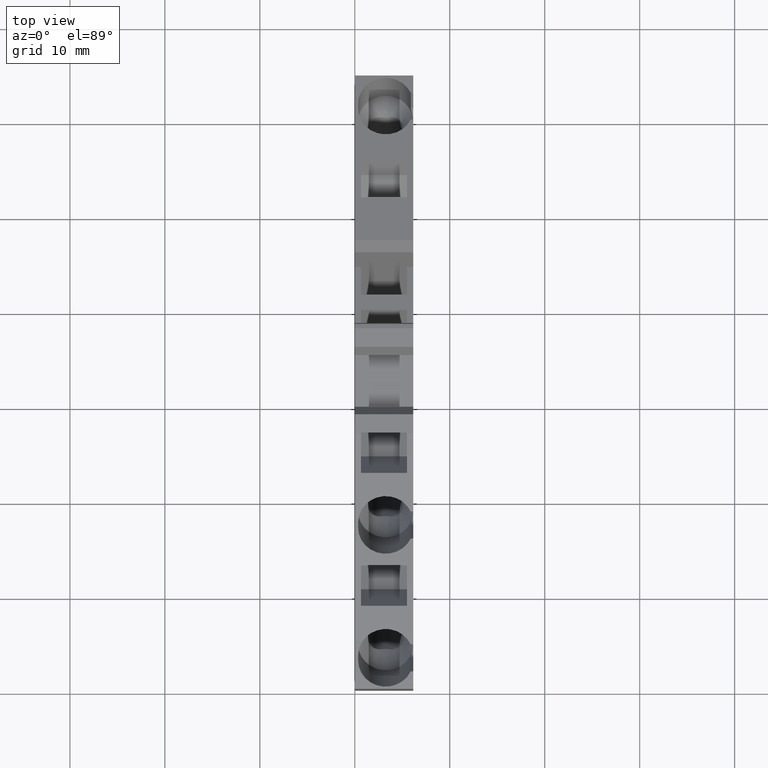
[diagram: clean part render]
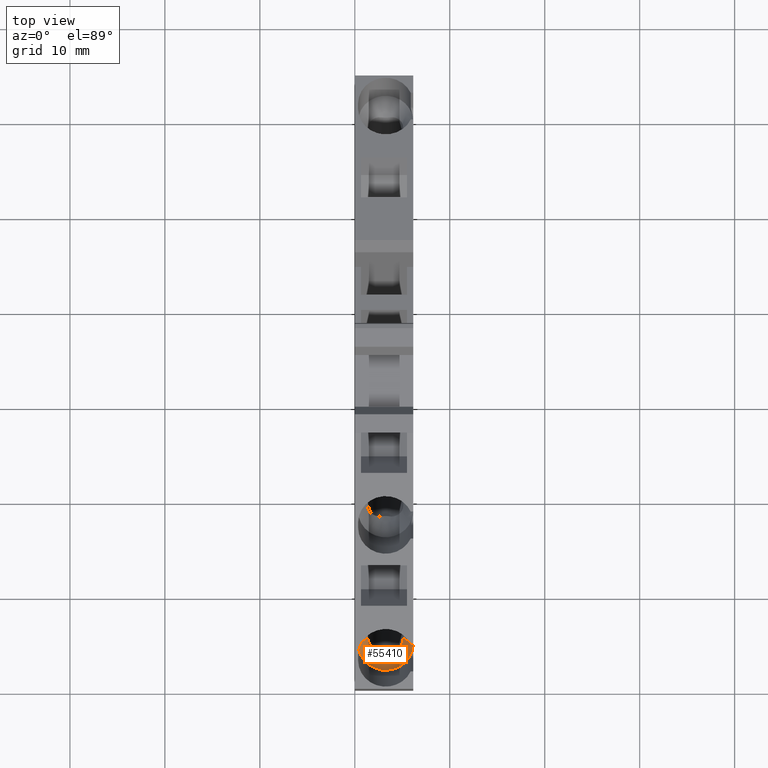
[diagram: same view with one face highlighted and labeled with its STEP entity id]
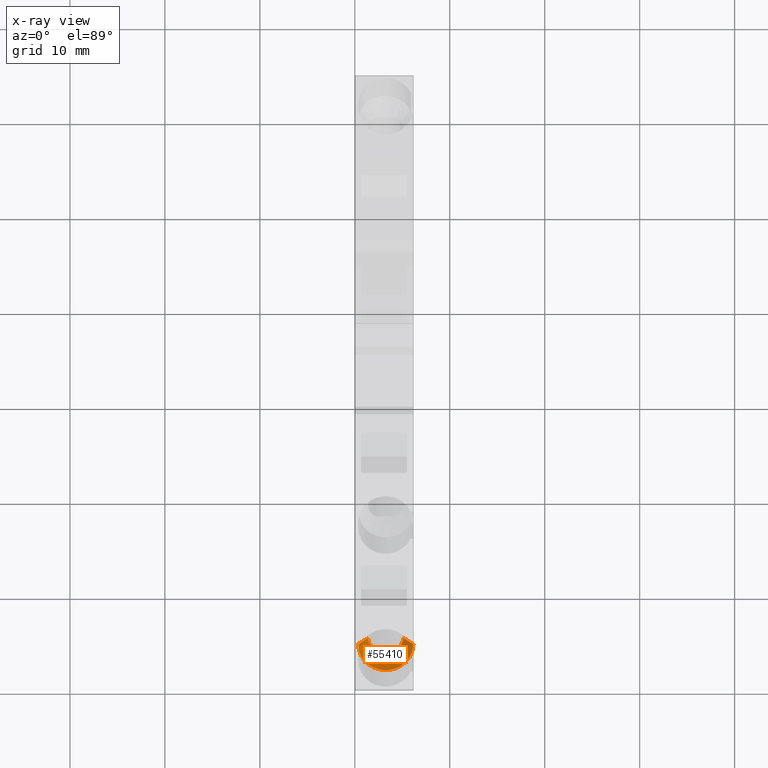
[diagram: x-ray of the same camera — body ghosted, the highlighted face saturated]
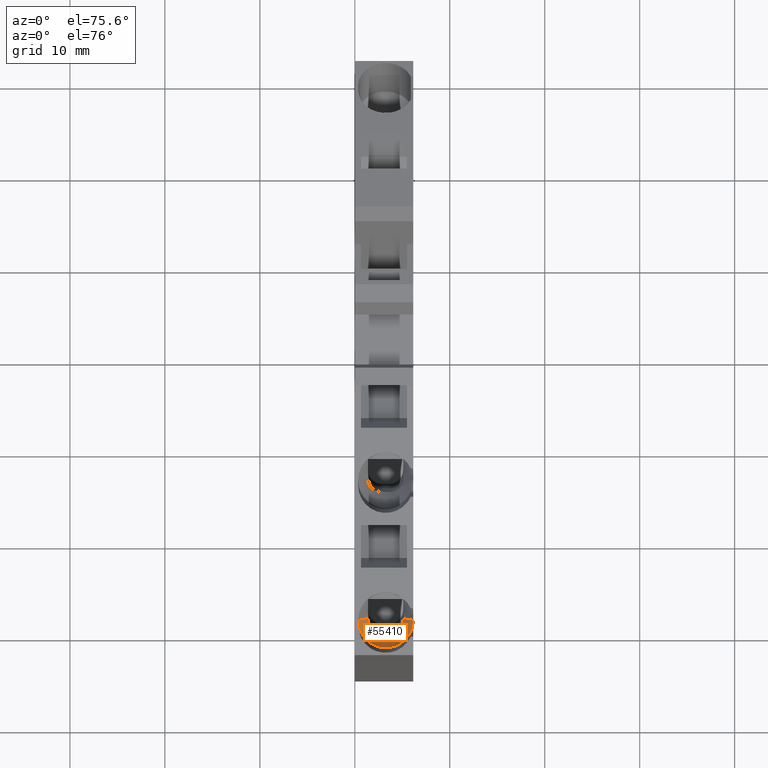
[diagram: same view with one face highlighted and labeled with its STEP entity id]
A machine part, top view. The second image highlights one B-rep face of the part: STEP entity #55410.
The next image is the same camera in x-ray: the body ghosted, the highlighted face saturated — about 0% of this face is hidden behind the body in this view.
A second angle (auxiliary view) of the same face is appended — the face is thin or edge-on in the first view.
In plain terms, the highlighted conical surface has half-angle 28.301 deg.
Its self-contained STEP definition (entity closure, byte-faithful):
#5430=CARTESIAN_POINT('',(-102.118063169516,37.6700971062937,
0.949999999999994));
#5440=VERTEX_POINT('',#5430);
#10970=CARTESIAN_POINT('',(-102.118063169515,37.6700971062937,
-4.85000000000001));
#10980=VERTEX_POINT('',#10970);
#20790=CARTESIAN_POINT('',(-101.45112389003,35.8376964957612,-3.8));
#20800=VERTEX_POINT('',#20790);
#44500=CARTESIAN_POINT('',(-102.118063169515,37.6700971062937,
-1.95000000000001));
#44510=DIRECTION('',(-0.342020143325662,0.939692620785911,
-3.52120158727582E-15));
#44520=DIRECTION('',(-0.939692620785911,-0.342020143325662,0.));
#44530=AXIS2_PLACEMENT_3D('',#44500,#44510,#44520);
#44540=CIRCLE('',#44530,2.9);
#44550=CARTESIAN_POINT('',(-102.306001693665,37.6016930776313,
0.943095228297956));
#44560=VERTEX_POINT('',#44550);
#44570=EDGE_CURVE('',#10980,#44560,#44540,.T.);
#48500=CARTESIAN_POINT('',(-102.118063169515,37.6700971062937,
-1.95000000000001));
#48510=DIRECTION('',(0.342020143325655,-0.939692620785913,
3.57099154978097E-15));
#48520=DIRECTION('',(1.15466216469529E-15,-3.37990717439375E-15,-1.));
#48530=AXIS2_PLACEMENT_3D('',#48500,#48510,#48520);
#48540=CIRCLE('',#48530,2.9);
#48550=EDGE_CURVE('',#5440,#44560,#48540,.T.);
#48670=CARTESIAN_POINT('',(-102.351950996681,34.073182249879,-2.35));
#48680=DIRECTION('',(0.939692620785908,0.342020143325669,
-7.09688205487581E-17));
#48690=DIRECTION('',(1.17560485838368E-15,-3.43744675240515E-15,-1.));
#48700=AXIS2_PLACEMENT_3D('',#48670,#48680,#48690);
#48710=PLANE('',#48700);
#48860=CARTESIAN_POINT('',(-102.594008015813,34.7382284441657,
-1.55000000000706));
#48870=VERTEX_POINT('',#48860);
#48900=CARTESIAN_POINT('',(-102.666104205858,39.1758274785795,
-1.95000000000002));
#48910=DIRECTION('',(-0.342020143325666,0.939692620785909,
-3.17747699199041E-15));
#48920=DIRECTION('',(1.15466216469529E-15,-3.37990717439375E-15,-1.));
#48930=AXIS2_PLACEMENT_3D('',#48900,#48910,#48920);
#48940=CONICAL_SURFACE('',#48930,3.76281181189991,0.493941368919582);
#48950=CARTESIAN_POINT('',(-102.594008015805,34.7382284441535,
-1.54999999999973));
#48960=CARTESIAN_POINT('',(-102.591384470421,34.7310203124528,
-1.5655319465367));
#48970=CARTESIAN_POINT('',(-102.58886960104,34.7241107656055,
-1.5812616591849));
#48980=CARTESIAN_POINT('',(-102.586480539058,34.7175468717546,
-1.5971699642646));
#48990=CARTESIAN_POINT('',(-102.584091482344,34.7109829923792,
-1.6130782342613));
#49000=CARTESIAN_POINT('',(-102.581828290684,34.7047649243993,
-1.62916493889926));
#49010=CARTESIAN_POINT('',(-102.579707258445,34.6989374362147,
-1.64540833484355));
#49020=CARTESIAN_POINT('',(-102.577586228097,34.6931099532302,
-1.66165171629347));
#49030=CARTESIAN_POINT('',(-102.575607429625,34.6876732491094,
-1.6780515046308));
#49040=CARTESIAN_POINT('',(-102.573785763295,34.682668262003,
-1.69458353915605));
#49050=CARTESIAN_POINT('',(-102.571964094662,34.6776632685673,
-1.71111559458812));
#49060=CARTESIAN_POINT('',(-102.570299638169,34.6730902119565,
-1.72777945344399));
#49070=CARTESIAN_POINT('',(-102.568805298093,34.6689845463423,
-1.74454930083674));
#49080=CARTESIAN_POINT('',(-102.567310951332,34.664878862358,
-1.76131922326314));
#49090=CARTESIAN_POINT('',(-102.565986794699,34.6612407718913,
-1.77819452400228));
#49100=CARTESIAN_POINT('',(-102.564843198444,34.6580987670038,
-1.79514934468734));
#49110=CARTESIAN_POINT('',(-102.56369943615,34.6549563059273,
-1.81210662704961));
#49120=CARTESIAN_POINT('',(-102.56273680318,34.6523114935767,
-1.82913255848908));
#49130=CARTESIAN_POINT('',(-102.561961481085,34.6501813136285,
-1.84623280338646));
#49140=CARTESIAN_POINT('',(-102.561185671918,34.6480497954611,
-1.86334379097956));
#49150=CARTESIAN_POINT('',(-102.560595718961,34.646428913033,
-1.88057471591789));
#49160=CARTESIAN_POINT('',(-102.56020084959,34.6453440183534,
-1.89788129328948));
#49170=CARTESIAN_POINT('',(-102.559805986061,34.6442591397236,
-1.91518761463109));
#49180=CARTESIAN_POINT('',(-102.559606316944,34.6437105533322,
-1.93256807225404));
#49190=CARTESIAN_POINT('',(-102.559606083904,34.6437099130605,
-1.94996942840482));
#49200=CARTESIAN_POINT('',(-102.559605850866,34.643709272793,
-1.96737066814762));
#49210=CARTESIAN_POINT('',(-102.559805080929,34.6442566528924,
-1.98479111946754));
#49220=CARTESIAN_POINT('',(-102.560202112953,34.6453474894123,
-2.00217404877721));
#49230=CARTESIAN_POINT('',(-102.560599145174,34.6464383264767,
-2.01955698676263));
#49240=CARTESIAN_POINT('',(-102.561193918528,34.6480724528353,
-2.0369007608787));
#49250=CARTESIAN_POINT('',(-102.561978886348,34.6502291341946,
-2.0541503774013));
#49260=CARTESIAN_POINT('',(-102.562763859838,34.6523858311354,
-2.07140011854799));
#49270=CARTESIAN_POINT('',(-102.563738897891,34.6550647261691,
-2.0885542954934));
#49280=CARTESIAN_POINT('',(-102.564891437596,34.6582313029819,
-2.10556421771552));
#49290=CARTESIAN_POINT('',(-102.566043998905,34.6613979391534,
-2.1225744587947));
#49300=CARTESIAN_POINT('',(-102.56737386594,34.6650517188041,
-2.13943903410541));
#49310=CARTESIAN_POINT('',(-102.568865051794,34.6691487182649,
-2.15612020019625));
#49320=CARTESIAN_POINT('',(-102.570356581857,34.6732466634352,
-2.17280521679708));
#49330=CARTESIAN_POINT('',(-102.572015414301,34.6778042681267,
-2.18937482190904));
#49340=CARTESIAN_POINT('',(-102.573829891815,34.6827895041255,
-2.20581663320248));
#49350=CARTESIAN_POINT('',(-102.57564436428,34.6877747262508,
-2.2222583987396));
#49360=CARTESIAN_POINT('',(-102.577614441402,34.6931874686473,
-2.23857212368502));
#49370=CARTESIAN_POINT('',(-102.579727324274,34.6989925666269,
-2.25474529719226));
#49380=CARTESIAN_POINT('',(-102.583953141584,34.7106029042657,
-2.28709203893064));
#49390=CARTESIAN_POINT('',(-102.588750433652,34.7237833558972,
-2.31887399563867));
#49400=CARTESIAN_POINT('',(-102.594008015814,34.7382284441692,
-2.35000000000051));
#49410=B_SPLINE_CURVE_WITH_KNOTS('',3,(#48950,#48960,#48970,#48980,
#48990,#49000,#49010,#49020,#49030,#49040,#49050,#49060,#49070,#49080,
#49090,#49100,#49110,#49120,#49130,#49140,#49150,#49160,#49170,#49180,
#49190,#49200,#49210,#49220,#49230,#49240,#49250,#49260,#49270,#49280,
#49290,#49300,#49310,#49320,#49330,#49340,#49350,#49360,#49370,#49380,
#49390,#49400),.UNSPECIFIED.,.F.,.F.,(4,3,3,3,3,3,3,3,3,3,3,3,3,3,3,4),(
0.,0.0520562471891238,0.104206738624753,0.156346818536366,
0.208398282272325,0.260315289943334,0.312097472865418,0.364011053995062,
0.416137834400835,0.46838122313786,0.520625884211734,0.572748889667257,
0.624630450346463,0.676410451166475,0.728294526186036,0.832336805167424)
,.UNSPECIFIED.);
#49420=SURFACE_CURVE('',#49410,(#48710,#48940),.CURVE_3D.);
#49430=CARTESIAN_POINT('',(-102.594008015814,34.738228444169,
-2.3500000000001));
#49440=VERTEX_POINT('',#49430);
#49450=EDGE_CURVE('',#48870,#49440,#49420,.T.);
#51690=CARTESIAN_POINT('',(-101.45112389003,35.8376964957612,
-0.100000000000006));
#51700=VERTEX_POINT('',#51690);
#53170=CARTESIAN_POINT('',(-102.666104205858,39.1758274785795,
1.81281181189989));
#53180=DIRECTION('',(-0.30113885178948,0.827372195412126,
0.474099823035014));
#53190=VECTOR('',#53180,7.93675008737977);
#53200=LINE('',#53170,#53190);
#53210=EDGE_CURVE('',#51700,#5440,#53200,.T.);
#53350=CARTESIAN_POINT('',(-94.165645452449,15.821008998583,
-1.54999999999993));
#53360=DIRECTION('',(0.342020143325669,-0.939692620785908,
3.63598040564739E-15));
#53370=DIRECTION('',(-0.939692620785908,-0.342020143325669,0.));
#53380=AXIS2_PLACEMENT_3D('',#53350,#53360,#53370);
#53390=CYLINDRICAL_SURFACE('',#53380,1.45);
#53400=CARTESIAN_POINT('',(-101.451123890058,35.8376964958373,
-0.0999999999782113));
#53410=CARTESIAN_POINT('',(-101.474359103007,35.8292395699369,
-0.0999999999782113));
#53420=CARTESIAN_POINT('',(-101.497566553329,35.8205223259721,
-0.100632913564195));
#53430=CARTESIAN_POINT('',(-101.520697966976,35.811559144653,
-0.101905779156681));
#53440=CARTESIAN_POINT('',(-101.543829175847,35.8025960426827,
-0.103178633480811));
#53450=CARTESIAN_POINT('',(-101.566883515217,35.7933872966691,
-0.105091463278285));
#53460=CARTESIAN_POINT('',(-101.589809025813,35.7839508533543,
-0.107645233738801));
#53470=CARTESIAN_POINT('',(-101.612734458959,35.7745144419189,
-0.110198995571842));
#53480=CARTESIAN_POINT('',(-101.6355305335,35.7648505359502,
-0.113393672930834));
#53490=CARTESIAN_POINT('',(-101.658144530367,35.7549798447355,
-0.117223556163725));
#53500=CARTESIAN_POINT('',(-101.680758498023,35.7451091662712,
-0.121053434449392));
#53510=CARTESIAN_POINT('',(-101.703189857152,35.7350319269301,
-0.125518441189405));
#53520=CARTESIAN_POINT('',(-101.725386969389,35.7247710093761,
-0.130606052930437));
#53530=CARTESIAN_POINT('',(-101.747584097335,35.7145100845602,
-0.135693668272087));
#53540=CARTESIAN_POINT('',(-101.769546464847,35.7040657194963,
-0.141403762421676));
#53550=CARTESIAN_POINT('',(-101.79122519193,35.6934622703778,
-0.147717295413083));
#53560=CARTESIAN_POINT('',(-101.81290397783,35.6828587924904,
-0.154030845534206));
#53570=CARTESIAN_POINT('',(-101.834298643642,35.6720964740961,
-0.160947664930276));
#53580=CARTESIAN_POINT('',(-101.855364582463,35.6612003379943,
-0.168442914711025));
#53590=CARTESIAN_POINT('',(-101.876430622815,35.6503041493769,
-0.175938200616372));
#53600=CARTESIAN_POINT('',(-101.89716750566,35.6392743840264,
-0.184011711140289));
#53610=CARTESIAN_POINT('',(-101.91753624596,35.6281358138711,
-0.192633943912863));
#53620=CARTESIAN_POINT('',(-101.937895268445,35.6170025578671,
-0.201252063065004));
#53630=CARTESIAN_POINT('',(-101.957909170928,35.6057494828193,
-0.210425088626864));
#53640=CARTESIAN_POINT('',(-101.977658855525,35.5943287670864,
-0.22018965510261));
#53650=CARTESIAN_POINT('',(-101.997399164809,35.5829134728463,
-0.229949586270987));
#53660=CARTESIAN_POINT('',(-102.016833552381,35.5713536738147,
-0.240282652055523));
#53670=CARTESIAN_POINT('',(-102.035923028872,35.5596693618055,
-0.251168960098941));
#53680=CARTESIAN_POINT('',(-102.055012442781,35.5479850881015,
-0.262055232453272));
#53690=CARTESIAN_POINT('',(-102.073756587927,35.5361764991336,
-0.273494580870436));
#53700=CARTESIAN_POINT('',(-102.092117663208,35.5242653593887,
-0.285461580350202));
#53710=CARTESIAN_POINT('',(-102.110478709606,35.5123542383813,
-0.297428561004637));
#53720=CARTESIAN_POINT('',(-102.128456342881,35.500340775813,
-0.309922987167615));
#53730=CARTESIAN_POINT('',(-102.146015360507,35.4882479074703,
-0.322914282910851));
#53740=CARTESIAN_POINT('',(-102.16357437847,35.4761550388956,
-0.335905578903373));
#53750=CARTESIAN_POINT('',(-102.180714462795,35.4639829780039,
-0.349393508222335));
#53760=CARTESIAN_POINT('',(-102.197404160327,35.4517552151318,
-0.363342994385437));
#53770=CARTESIAN_POINT('',(-102.214093883886,35.4395274331914,
-0.377292502301709));
#53780=CARTESIAN_POINT('',(-102.230332936131,35.4272441606895,
-0.391703308794121));
#53790=CARTESIAN_POINT('',(-102.246094516222,35.4149288125334,
-0.406536726936336));
#53800=CARTESIAN_POINT('',(-102.261856145425,35.4026134260045,
-0.42137019129742));
#53810=CARTESIAN_POINT('',(-102.27714005765,35.3902661676898,
-0.436625995630696));
#53820=CARTESIAN_POINT('',(-102.291924770692,35.3779097292188,
-0.452262957079398));
#53830=CARTESIAN_POINT('',(-102.306715698615,35.365548096612,
-0.467906491660134));
#53840=CARTESIAN_POINT('',(-102.320981812233,35.3531998172168,
-0.483901692312484));
#53850=CARTESIAN_POINT('',(-102.334778792036,35.340822366287,
-0.500290514676815));
#53860=CARTESIAN_POINT('',(-102.348582862376,35.3284385543442,
-0.516687759576189));
#53870=CARTESIAN_POINT('',(-102.361934420252,35.3160087355174,
-0.533502465154713));
#53880=CARTESIAN_POINT('',(-102.374812231256,35.3035493516424,
-0.550706286338647));
#53890=CARTESIAN_POINT('',(-102.387690003188,35.2910900055692,
-0.567910055326167));
#53900=CARTESIAN_POINT('',(-102.400093857899,35.2786012305409,
-0.58550276279502));
#53910=CARTESIAN_POINT('',(-102.4120043481,35.2661005287325,
-0.603452383217944));
#53920=CARTESIAN_POINT('',(-102.423914816325,35.2535998499899,
-0.621401970521031));
#53930=CARTESIAN_POINT('',(-102.43533176429,35.2410873866517,
-0.639708269371967));
#53940=CARTESIAN_POINT('',(-102.446238400985,35.2285812417817,
-0.65833609422161));
#53950=CARTESIAN_POINT('',(-102.457145029542,35.2160751062433,
-0.676963905171826));
#53960=CARTESIAN_POINT('',(-102.467541209984,35.2035754327756,
-0.69591302420741));
#53970=CARTESIAN_POINT('',(-102.47741346209,35.1911004920241,
-0.715145736712291));
#53980=CARTESIAN_POINT('',(-102.487285717053,35.1786255476622,
-0.734378454783347));
#53990=CARTESIAN_POINT('',(-102.496633928409,35.1661754773155,
-0.75389453878803));
#54000=CARTESIAN_POINT('',(-102.505448381142,35.1537683124514,
-0.773654463276942));
#54010=CARTESIAN_POINT('',(-102.514262845298,35.1413611315092,
-0.793414413372103));
#54020=CARTESIAN_POINT('',(-102.522543458643,35.1289969920666,
-0.8134179728675));
#54030=CARTESIAN_POINT('',(-102.530284539547,35.116693302244,
-0.833624597680568));
#54040=CARTESIAN_POINT('',(-102.538025638349,35.1043895839741,
-0.853831269213128));
#54050=CARTESIAN_POINT('',(-102.545227136334,35.0921464436169,
-0.874240776852751));
#54060=CARTESIAN_POINT('',(-102.551887477393,35.079980297857,
-0.894812418864442));
#54070=CARTESIAN_POINT('',(-102.55855003975,35.067810094551,
-0.915390921749594));
#54080=CARTESIAN_POINT('',(-102.564662971826,35.0557342527961,
-0.936101588012725));
#54090=CARTESIAN_POINT('',(-102.570251761582,35.0437188823524,
-0.956989458141514));
#54100=CARTESIAN_POINT('',(-102.575843683815,35.0316967773769,
-0.9778890357765));
#54110=CARTESIAN_POINT('',(-102.580919001801,35.0197150334571,
-0.999001838699148));
#54120=CARTESIAN_POINT('',(-102.585471173819,35.0077860748667,
-1.02029862191315));
#54130=CARTESIAN_POINT('',(-102.594575566982,34.9839280289479,
-1.06289241817722));
#54140=CARTESIAN_POINT('',(-102.601584536364,34.9602819652299,
-1.10622171343037));
#54150=CARTESIAN_POINT('',(-102.606472310153,34.9369507763384,
-1.15003337593219));
#54160=CARTESIAN_POINT('',(-102.611360056779,34.9136197171046,
-1.1938447949608));
#54170=CARTESIAN_POINT('',(-102.614125817557,34.8906061281965,
-1.23813357698713));
#54180=CARTESIAN_POINT('',(-102.614786227487,34.8680118971243,
-1.28263183268832));
#54190=CARTESIAN_POINT('',(-102.615446639912,34.8454175806863,
-1.32713025651353));
#54200=CARTESIAN_POINT('',(-102.614001716881,34.8232450429585,
-1.37183310369387));
#54210=CARTESIAN_POINT('',(-102.610512598302,34.8015881027838,
-1.41647445019792));
#54220=CARTESIAN_POINT('',(-102.608768050664,34.7907597050136,
-1.43879497438284));
#54230=CARTESIAN_POINT('',(-102.60651316671,34.7800602700789,
-1.46109979346848));
#54240=CARTESIAN_POINT('',(-102.603759462346,34.769500449997,
-1.48335689515976));
#54250=CARTESIAN_POINT('',(-102.601004410761,34.7589354636361,
-1.50562488589982));
#54260=CARTESIAN_POINT('',(-102.597759048942,34.7485343229858,
-1.52779308627434));
#54270=CARTESIAN_POINT('',(-102.594008015813,34.7382284441654,
-1.55000000000715));
#54280=B_SPLINE_CURVE_WITH_KNOTS('',3,(#53400,#53410,#53420,#53430,
#53440,#53450,#53460,#53470,#53480,#53490,#53500,#53510,#53520,#53530,
#53540,#53550,#53560,#53570,#53580,#53590,#53600,#53610,#53620,#53630,
#53640,#53650,#53660,#53670,#53680,#53690,#53700,#53710,#53720,#53730,
#53740,#53750,#53760,#53770,#53780,#53790,#53800,#53810,#53820,#53830,
#53840,#53850,#53860,#53870,#53880,#53890,#53900,#53910,#53920,#53930,
#53940,#53950,#53960,#53970,#53980,#53990,#54000,#54010,#54020,#54030,
#54040,#54050,#54060,#54070,#54080,#54090,#54100,#54110,#54120,#54130,
#54140,#54150,#54160,#54170,#54180,#54190,#54200,#54210,#54220,#54230,
#54240,#54250,#54260,#54270),.UNSPECIFIED.,.F.,.F.,(4,3,3,3,3,3,3,3,3,3,
3,3,3,3,3,3,3,3,3,3,3,3,3,3,3,3,3,3,3,4),(0.,0.0743555749852234,
0.149007589206082,0.223855697113009,0.298786612412906,0.37368066960444,
0.44841777485598,0.522883453549984,0.597168598828264,0.671714049263399,
0.746470819433654,0.821345499879546,0.896233919713776,0.971026095550254,
1.04561100576777,1.11990593704055,1.19430240407905,1.26892770751146,
1.34371399540723,1.41858124019826,1.49344091298841,1.56819938025817,
1.6427612105651,1.71705165302746,1.79142757907298,1.940774249253,
2.09050139518323,2.24002668112557,2.31452030455609,2.38878420540854),
.UNSPECIFIED.);
#54290=SURFACE_CURVE('',#54280,(#53390,#48940),.CURVE_3D.);
#54300=EDGE_CURVE('',#51700,#48870,#54290,.T.);
#54310=ORIENTED_EDGE('',*,*,#54300,.T.);
#54320=ORIENTED_EDGE('',*,*,#53210,.F.);
#54330=ORIENTED_EDGE('',*,*,#48550,.F.);
#54340=ORIENTED_EDGE('',*,*,#44570,.T.);
#54350=CARTESIAN_POINT('',(-102.666104205858,39.1758274785795,
-5.71281181189992));
#54360=DIRECTION('',(-0.301138851789491,0.827372195412119,
-0.474099823035021));
#54370=VECTOR('',#54360,7.93675008737977);
#54380=LINE('',#54350,#54370);
#54390=EDGE_CURVE('',#20800,#10980,#54380,.T.);
#54400=ORIENTED_EDGE('',*,*,#54390,.T.);
#54410=CARTESIAN_POINT('',(-94.165645452449,15.821008998583,
-2.34999999999993));
#54420=DIRECTION('',(0.342020143325669,-0.939692620785908,
3.58046925441613E-15));
#54430=DIRECTION('',(-0.939692620785908,-0.342020143325669,0.));
#54440=AXIS2_PLACEMENT_3D('',#54410,#54420,#54430);
#54450=CYLINDRICAL_SURFACE('',#54440,1.45);
#54460=CARTESIAN_POINT('',(-102.594008015813,34.7382284441671,
-2.34999999999957));
#54470=CARTESIAN_POINT('',(-102.601539503071,34.7589210353431,
-2.39458800604571));
#54480=CARTESIAN_POINT('',(-102.607084862117,34.7801794595532,
-2.43940608870223));
#54490=CARTESIAN_POINT('',(-102.610565345737,34.8019165160545,
-2.4842024298499));
#54500=CARTESIAN_POINT('',(-102.614045814568,34.8236534801867,
-2.52899858064072));
#54510=CARTESIAN_POINT('',(-102.615460936053,34.8458669648008,
-2.57376836274307));
#54520=CARTESIAN_POINT('',(-102.614772812138,34.8684614378017,
-2.6182533797111));
#54530=CARTESIAN_POINT('',(-102.614084685274,34.8910560076623,
-2.66273858738099));
#54540=CARTESIAN_POINT('',(-102.611293553976,34.9140292657415,
-2.70693434606692));
#54550=CARTESIAN_POINT('',(-102.606402488653,34.9372833971986,
-2.75059115194943));
#54560=CARTESIAN_POINT('',(-102.603956970033,34.9489103961719,
-2.77241942956588));
#54570=CARTESIAN_POINT('',(-102.600987127365,34.9606073959121,
-2.7941127801543));
#54580=CARTESIAN_POINT('',(-102.597496747117,34.9723624103201,
-2.81564181801794));
#54590=CARTESIAN_POINT('',(-102.594004584125,34.9841234287088,
-2.83718185203384));
#54600=CARTESIAN_POINT('',(-102.590002268353,34.995914258927,
-2.85850701469786));
#54610=CARTESIAN_POINT('',(-102.585461242776,35.0078120970575,
-2.87974783509196));
#54620=CARTESIAN_POINT('',(-102.580920179812,35.019710033144,
-2.90098883036362));
#54630=CARTESIAN_POINT('',(-102.575841871156,35.0317043239086,
-2.92212504970454));
#54640=CARTESIAN_POINT('',(-102.570223200565,35.0437802765418,
-2.94311726884385));
#54650=CARTESIAN_POINT('',(-102.564604544832,35.0558561972412,
-2.96410943247098));
#54660=CARTESIAN_POINT('',(-102.558445563512,35.0680136680388,
-2.98495738292798));
#54670=CARTESIAN_POINT('',(-102.551746950409,35.0802368571513,
-3.00562135195405));
#54680=CARTESIAN_POINT('',(-102.545048348649,35.0924600255648,
-3.02628528598718));
#54690=CARTESIAN_POINT('',(-102.537810172556,35.1047487923255,
-3.04676502028272));
#54700=CARTESIAN_POINT('',(-102.530036977718,35.1170865063365,
-3.06702106730781));
#54710=CARTESIAN_POINT('',(-102.522263788864,35.1294242108476,
-3.08727709873608));
#54720=CARTESIAN_POINT('',(-102.513955659765,35.1418107363372,
-3.10730922381286));
#54730=CARTESIAN_POINT('',(-102.505120900762,35.1542289463744,
-3.12707900911068));
#54740=CARTESIAN_POINT('',(-102.496286140331,35.1666471584191,
-3.14684879760446));
#54750=CARTESIAN_POINT('',(-102.486924849003,35.1790969247028,
-3.16635603155343));
#54760=CARTESIAN_POINT('',(-102.47704881949,35.1915609785324,
-3.18556405284202));
#54770=CARTESIAN_POINT('',(-102.467172778775,35.2040250465,
-3.20477209591843));
#54780=CARTESIAN_POINT('',(-102.456782118089,35.2165032704908,
-3.22368072169092));
#54790=CARTESIAN_POINT('',(-102.445891663483,35.2289786352175,
-3.24225570949557));
#54800=CARTESIAN_POINT('',(-102.435001185182,35.2414540270877,
-3.26083073771517));
#54810=CARTESIAN_POINT('',(-102.42361104797,35.253926430523,
-3.27907194010805));
#54820=CARTESIAN_POINT('',(-102.411738471446,35.2663794927273,
-3.29694812174065));
#54830=CARTESIAN_POINT('',(-102.399865821856,35.2788326315692,
-3.31482441338547));
#54840=CARTESIAN_POINT('',(-102.387511036036,35.291266153519,
-3.33233530657401));
#54850=CARTESIAN_POINT('',(-102.374692432811,35.3036652437116,
-3.34945372635507));
#54860=CARTESIAN_POINT('',(-102.361871406738,35.3160666774603,
-3.36657538169421));
#54870=CARTESIAN_POINT('',(-102.348527428354,35.328490563479,
-3.3833829024906));
#54880=CARTESIAN_POINT('',(-102.334674306031,35.3409160934217,
-3.39983358140285));
#54890=CARTESIAN_POINT('',(-102.320821241269,35.3533415717351,
-3.41628419196081));
#54900=CARTESIAN_POINT('',(-102.30645921272,35.3657685106001,
-3.43237768736881));
#54910=CARTESIAN_POINT('',(-102.29160750276,35.3781748229749,
-3.44807246001643));
#54920=CARTESIAN_POINT('',(-102.276755831989,35.3905811026127,
-3.46376719124982));
#54930=CARTESIAN_POINT('',(-102.261414700488,35.4029665609841,
-3.47906293014948));
#54940=CARTESIAN_POINT('',(-102.245608485394,35.4153084456293,
-3.49392040666914));
#54950=CARTESIAN_POINT('',(-102.229802289033,35.4276503156474,
-3.50877786558033));
#54960=CARTESIAN_POINT('',(-102.213531266217,35.4399484102042,
-3.5231968043782));
#54970=CARTESIAN_POINT('',(-102.196824282998,35.4521799092106,
-3.53714133855681));
#54980=CARTESIAN_POINT('',(-102.180117295261,35.4644114115249,
-3.55108587650661));
#54990=CARTESIAN_POINT('',(-102.162974635382,35.4765761146992,
-3.56455577226655));
#55000=CARTESIAN_POINT('',(-102.145428817988,35.4886517217991,
-3.5775193795067));
#55010=CARTESIAN_POINT('',(-102.127882969192,35.5007273505112,
-3.5904830099484));
#55020=CARTESIAN_POINT('',(-102.109934274998,35.5127136836391,
-3.6029401430682));
#55030=CARTESIAN_POINT('',(-102.091617811,35.5245895353269,
-3.61486401109569));
#55040=CARTESIAN_POINT('',(-102.073301284242,35.5364654277071,
-3.62678791998018));
#55050=CARTESIAN_POINT('',(-102.054617313764,35.5482306502082,
-3.63817839254306));
#55060=CARTESIAN_POINT('',(-102.03560218865,35.5598657105349,
-3.64901393745963));
#55070=CARTESIAN_POINT('',(-102.016576006563,35.5715075364526,
-3.65985578306249));
#55080=CARTESIAN_POINT('',(-101.997272166038,35.5829880153855,
-3.67011568869164));
#55090=CARTESIAN_POINT('',(-101.977556822,35.5943877674914,
-3.6798607854914));
#55100=CARTESIAN_POINT('',(-101.957841531039,35.6057874889067,
-3.68960585605529));
#55110=CARTESIAN_POINT('',(-101.937734505725,35.6170931367465,
-3.69882204635407));
#55120=CARTESIAN_POINT('',(-101.917272817571,35.6282798514334,
-3.70747752795235));
#55130=CARTESIAN_POINT('',(-101.896811219824,35.6394665166928,
-3.71613297130716));
#55140=CARTESIAN_POINT('',(-101.875995367982,35.6505340087771,
-3.72422748375408));
#55150=CARTESIAN_POINT('',(-101.854867913693,35.6614571784657,
-3.73173367105601));
#55160=CARTESIAN_POINT('',(-101.833740509958,35.6723803220171,
-3.73923984039697));
#55170=CARTESIAN_POINT('',(-101.812301960376,35.6831588998494,
-3.74615749533977));
#55180=CARTESIAN_POINT('',(-101.790599243338,35.6937683502331,
-3.75246481022697));
#55190=CARTESIAN_POINT('',(-101.76889653598,35.7043777958843,
-3.75877212230075));
#55200=CARTESIAN_POINT('',(-101.746930151735,35.7148178753493,
-3.76446894578413));
#55210=CARTESIAN_POINT('',(-101.724749954555,35.7250653980885,
-3.76953976636962));
#55220=CARTESIAN_POINT('',(-101.702569723791,35.7353129363441,
-3.77461059463311));
#55230=CARTESIAN_POINT('',(-101.680176189128,35.7453676916804,
-3.77905531845146));
#55240=CARTESIAN_POINT('',(-101.657620471127,35.7552085380156,
-3.78286507885599));
#55250=CARTESIAN_POINT('',(-101.635064672446,35.7650494195507,
-3.78667485288773));
#55260=CARTESIAN_POINT('',(-101.612347200262,35.7746761866139,
-3.78984961355639));
#55270=CARTESIAN_POINT('',(-101.589518613531,35.7840703758852,
-3.7923870815032));
#55280=CARTESIAN_POINT('',(-101.566685735115,35.7934663312273,
-3.79492502648403));
#55290=CARTESIAN_POINT('',(-101.543760422711,35.8026223620155,
-3.7968243972872));
#55300=CARTESIAN_POINT('',(-101.520738688393,35.8115433652445,
-3.79809197937752));
#55310=CARTESIAN_POINT('',(-101.49769753582,35.8204718931159,
-3.79936063064151));
#55320=CARTESIAN_POINT('',(-101.474476709537,35.8291967645748,
-3.80000000000013));
#55330=CARTESIAN_POINT('',(-101.451123890023,35.8376964957638,-3.8));
#55340=B_SPLINE_CURVE_WITH_KNOTS('',3,(#54460,#54470,#54480,#54490,
#54500,#54510,#54520,#54530,#54540,#54550,#54560,#54570,#54580,#54590,
#54600,#54610,#54620,#54630,#54640,#54650,#54660,#54670,#54680,#54690,
#54700,#54710,#54720,#54730,#54740,#54750,#54760,#54770,#54780,#54790,
#54800,#54810,#54820,#54830,#54840,#54850,#54860,#54870,#54880,#54890,
#54900,#54910,#54920,#54930,#54940,#54950,#54960,#54970,#54980,#54990,
#55000,#55010,#55020,#55030,#55040,#55050,#55060,#55070,#55080,#55090,
#55100,#55110,#55120,#55130,#55140,#55150,#55160,#55170,#55180,#55190,
#55200,#55210,#55220,#55230,#55240,#55250,#55260,#55270,#55280,#55290,
#55300,#55310,#55320,#55330),.UNSPECIFIED.,.F.,.F.,(4,3,3,3,3,3,3,3,3,3,
3,3,3,3,3,3,3,3,3,3,3,3,3,3,3,3,3,3,3,4),(0.,0.149511719675903,
0.299275723335243,0.448720978582616,0.523167822939908,0.597410794788301,
0.671858948845279,0.746546186440299,0.821380301342154,0.896269257859768,
0.971124277581946,1.04586291602834,1.12041230133499,1.19471285869285,
1.2690656252216,1.34370559059063,1.41852578235908,1.49341700607024,
1.56827247057171,1.64299232222199,1.71748841951493,1.79174381184218,
1.86622101492078,1.94095280199726,2.01582371737306,2.09071433449682,
2.16550712465071,2.24009232224509,2.31438490292017,2.3887842071655),
.UNSPECIFIED.);
#55350=SURFACE_CURVE('',#55340,(#54450,#48940),.CURVE_3D.);
#55360=EDGE_CURVE('',#49440,#20800,#55350,.T.);
#55370=ORIENTED_EDGE('',*,*,#55360,.T.);
#55380=ORIENTED_EDGE('',*,*,#49450,.T.);
#55390=EDGE_LOOP('',(#55380,#55370,#54400,#54340,#54330,#54320,#54310));
#55400=FACE_OUTER_BOUND('',#55390,.T.);
#55410=ADVANCED_FACE('',(#55400),#48940,.F.);